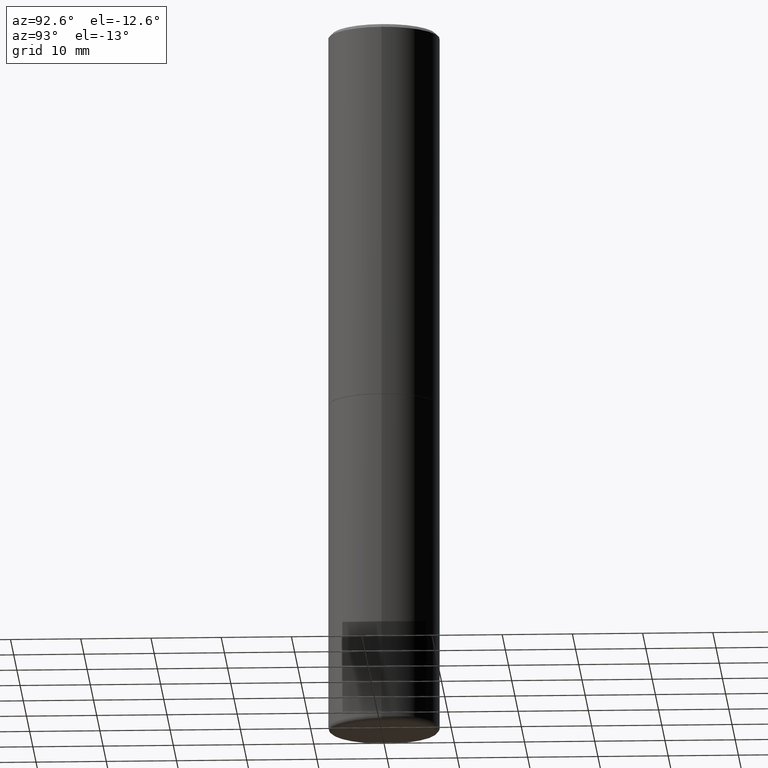
[diagram: clean part render]
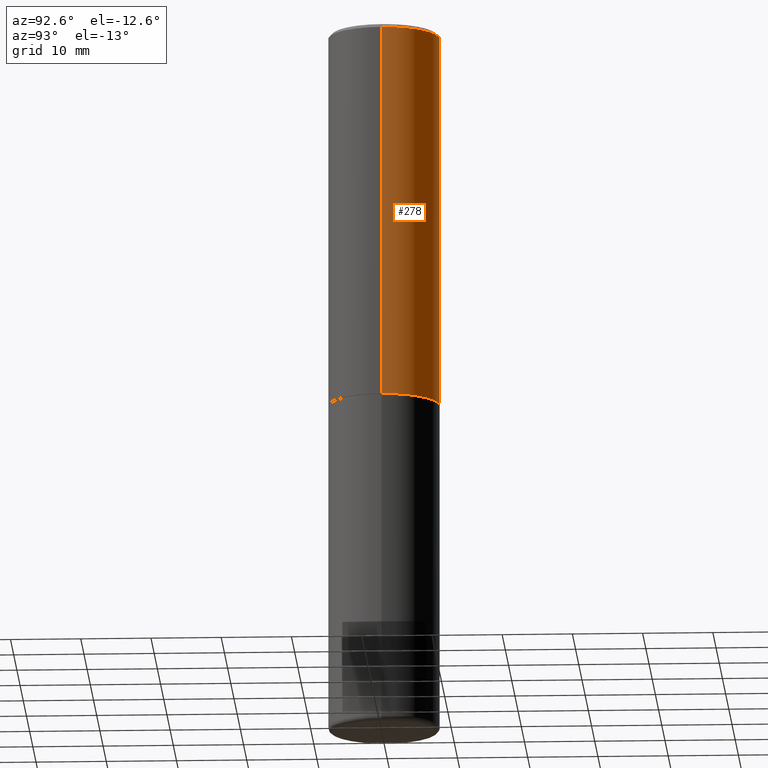
[diagram: same view with one face highlighted and labeled with its STEP entity id]
A machine part, auxiliary view. The second image highlights one B-rep face of the part: STEP entity #278.
In plain terms, the highlighted cylindrical surface (partial cylindrical patch) has radius 7.9375 mm, axis along (-0, 0, 1).
Its self-contained STEP definition (entity closure, byte-faithful):
#8 = VERTEX_POINT ( 'NONE', #352 ) ;
#9 = AXIS2_PLACEMENT_3D ( 'NONE', #15, #369, #39 ) ;
#14 = EDGE_CURVE ( 'NONE', #8, #317, #253, .T. ) ;
#15 = CARTESIAN_POINT ( 'NONE',  ( 0.000000000000000000, 0.000000000000000000, 0.000000000000000000 ) ) ;
#39 = DIRECTION ( 'NONE',  ( 1.000000000000000000, -6.982962677686266711E-15, 4.876176775795935232E-29 ) ) ;
#44 = FACE_OUTER_BOUND ( 'NONE', #324, .T. ) ;
#50 = LINE ( 'NONE', #413, #293 ) ;
#51 = VERTEX_POINT ( 'NONE', #261 ) ;
#59 = DIRECTION ( 'NONE',  ( 1.000000000000000000, -6.982962677686266711E-15, 0.000000000000000000 ) ) ;
#83 = DIRECTION ( 'NONE',  ( -2.445468806185136597E-29, 3.491481338843145583E-15, 1.000000000000000000 ) ) ;
#87 = ORIENTED_EDGE ( 'NONE', *, *, #405, .T. ) ;
#88 = ORIENTED_EDGE ( 'NONE', *, *, #14, .F. ) ;
#91 = DIRECTION ( 'NONE',  ( -2.445468806185136877E-29, 3.491481338843145188E-15, 1.000000000000000000 ) ) ;
#96 = CARTESIAN_POINT ( 'NONE',  ( 5.194175744337229665E-29, -7.415906363702840616E-15, -2.123999999999999666 ) ) ;
#114 = ORIENTED_EDGE ( 'NONE', *, *, #163, .T. ) ;
#129 = ORIENTED_EDGE ( 'NONE', *, *, #396, .F. ) ;
#163 = EDGE_CURVE ( 'NONE', #8, #51, #351, .T. ) ;
#182 = AXIS2_PLACEMENT_3D ( 'NONE', #186, #83, #59 ) ;
#186 = CARTESIAN_POINT ( 'NONE',  ( 4.890937612370289799E-31, -6.982962677686315028E-17, -0.02000000000000006981 ) ) ;
#202 = CARTESIAN_POINT ( 'NONE',  ( -0.3125000000000000000, 2.112346210000095443E-15, -0.02000000000000006981 ) ) ;
#206 = CARTESIAN_POINT ( 'NONE',  ( 0.3125000000000000000, -2.213735251080466911E-15, -0.02000000000000006981 ) ) ;
#218 = DIRECTION ( 'NONE',  ( -2.445468806185136877E-29, 3.491481338843145188E-15, 1.000000000000000000 ) ) ;
#226 = DIRECTION ( 'NONE',  ( -2.445468806185136597E-29, 3.491481338843145583E-15, 1.000000000000000000 ) ) ;
#241 = VECTOR ( 'NONE', #218, 39.37007874015748143 ) ;
#253 = LINE ( 'NONE', #255, #241 ) ;
#255 = CARTESIAN_POINT ( 'NONE',  ( 0.3125000000000001665, -2.182175836776959530E-15, 1.523805242436230636E-29 ) ) ;
#261 = CARTESIAN_POINT ( 'NONE',  ( -0.3125000000000002776, -1.522421945989534932E-15, -2.123999999999999666 ) ) ;
#278 = ADVANCED_FACE ( 'NONE', ( #44 ), #372, .T. ) ;
#293 = VECTOR ( 'NONE', #91, 39.37007874015748143 ) ;
#317 = VERTEX_POINT ( 'NONE', #206 ) ;
#324 = EDGE_LOOP ( 'NONE', ( #114, #87, #129, #88 ) ) ;
#339 = CIRCLE ( 'NONE', #182, 0.3125000000000000000 ) ;
#351 = CIRCLE ( 'NONE', #365, 0.3125000000000002776 ) ;
#352 = CARTESIAN_POINT ( 'NONE',  ( 0.3125000000000002776, -9.598082200479802119E-15, -2.123999999999999666 ) ) ;
#365 = AXIS2_PLACEMENT_3D ( 'NONE', #96, #226, #418 ) ;
#369 = DIRECTION ( 'NONE',  ( -2.445468806185136597E-29, 3.491481338843145583E-15, 1.000000000000000000 ) ) ;
#372 = CYLINDRICAL_SURFACE ( 'NONE', #9, 0.3125000000000001665 ) ;
#380 = VERTEX_POINT ( 'NONE', #202 ) ;
#396 = EDGE_CURVE ( 'NONE', #317, #380, #339, .T. ) ;
#405 = EDGE_CURVE ( 'NONE', #51, #380, #50, .T. ) ;
#413 = CARTESIAN_POINT ( 'NONE',  ( -0.3125000000000001665, 2.220446049250314264E-15, -1.537167215704658792E-29 ) ) ;
#418 = DIRECTION ( 'NONE',  ( 1.000000000000000000, -6.982962677686269077E-15, 0.000000000000000000 ) ) ;